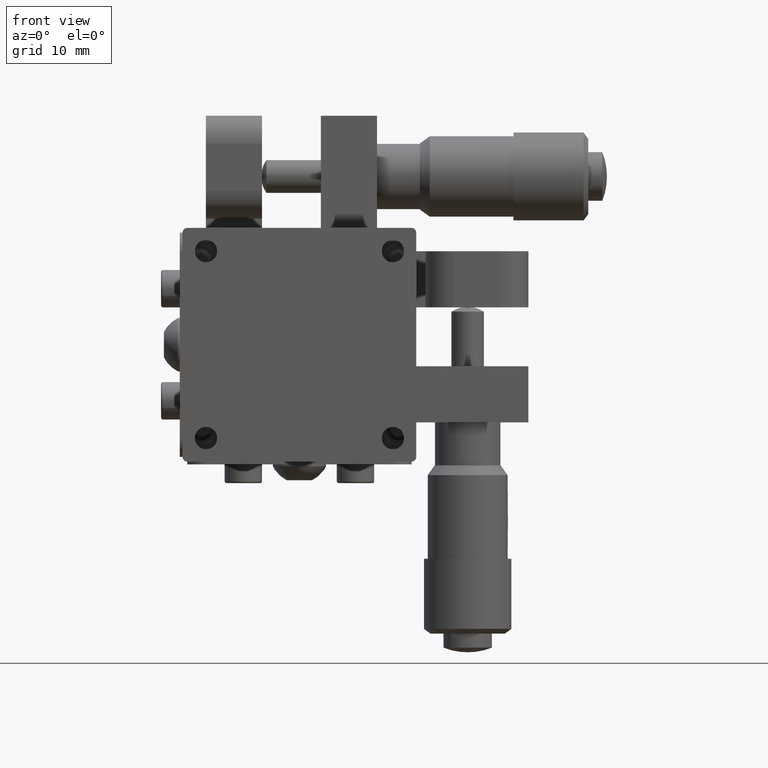
[diagram: clean part render]
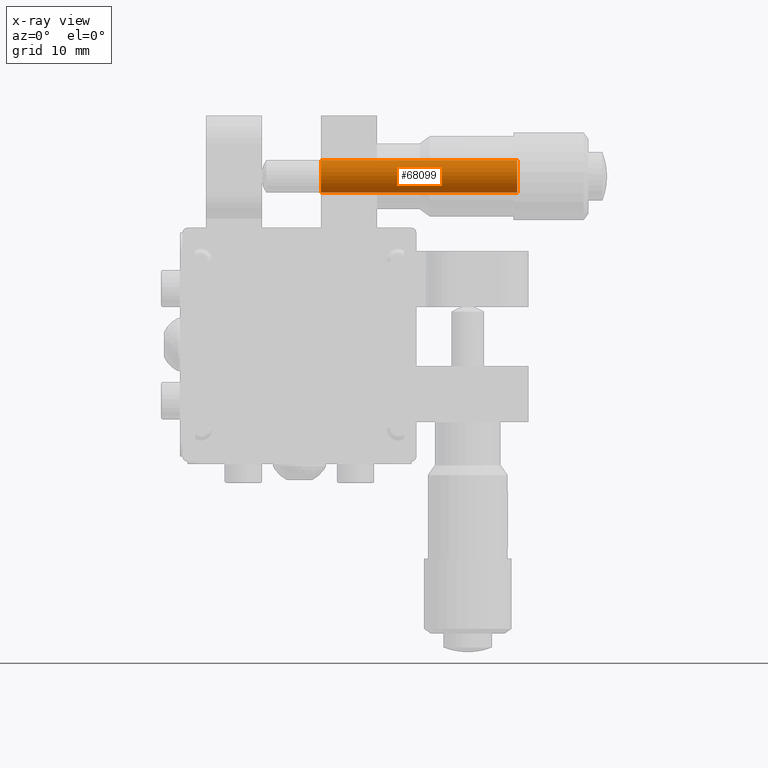
[diagram: x-ray — body ghosted, one internal face saturated and labeled with its STEP entity id]
A machine part, front view, then the same camera in x-ray: the body is ghosted and one INTERNAL B-rep face — a face not visible from any outside direction — is saturated and labeled: STEP entity #68099.
In plain terms, the highlighted cylindrical surface (edge-blend (fillet) strip) has radius 1.75 mm, axis along (-1, -0, -0).
Its self-contained STEP definition (entity closure, byte-faithful):
#11061 = EDGE_LOOP ( 'NONE', ( #35829, #47142, #91333, #44578 ) ) ;
#21367 = FACE_OUTER_BOUND ( 'NONE', #11061, .T. ) ;
#23414 = CARTESIAN_POINT ( 'NONE',  ( 23.30000000000003600, 7.333525501850187000, 16.25510145270401800 ) ) ;
#26351 = VECTOR ( 'NONE', #65777, 1000.000000000000000 ) ;
#33057 = DIRECTION ( 'NONE',  ( -1.000000000000000000, -1.224646799147349500E-016, -1.198260150553011900E-016 ) ) ;
#33107 = EDGE_CURVE ( 'NONE', #71112, #44688, #57722, .T. ) ;
#33288 = DIRECTION ( 'NONE',  ( -1.000000000000000000, -1.224646799147349800E-016, -1.198260150553010200E-016 ) ) ;
#35535 = DIRECTION ( 'NONE',  ( 0.0000000000000000000, -0.07630028677153800900, 0.9970848841691368800 ) ) ;
#35829 = ORIENTED_EDGE ( 'NONE', *, *, #33107, .F. ) ;
#37009 = CARTESIAN_POINT ( 'NONE',  ( 23.30000000000003600, 7.066474498149805300, 19.74489854729599300 ) ) ;
#37345 = DIRECTION ( 'NONE',  ( -1.000000000000000000, -1.224646799147349800E-016, -1.198260150553010200E-016 ) ) ;
#37710 = CIRCLE ( 'NONE', #64774, 1.749999999999998400 ) ;
#37936 = VERTEX_POINT ( 'NONE', #74942 ) ;
#40772 = DIRECTION ( 'NONE',  ( 0.0000000000000000000, -0.07630028677153800900, 0.9970848841691368800 ) ) ;
#44578 = ORIENTED_EDGE ( 'NONE', *, *, #82763, .F. ) ;
#44688 = VERTEX_POINT ( 'NONE', #59307 ) ;
#44974 = LINE ( 'NONE', #95400, #26351 ) ;
#47142 = ORIENTED_EDGE ( 'NONE', *, *, #58514, .T. ) ;
#48300 = DIRECTION ( 'NONE',  ( 0.0000000000000000000, -0.07630028677153800900, 0.9970848841691368800 ) ) ;
#53605 = AXIS2_PLACEMENT_3D ( 'NONE', #87446, #94918, #35535 ) ;
#57722 = CIRCLE ( 'NONE', #53605, 1.749999999999998400 ) ;
#58514 = EDGE_CURVE ( 'NONE', #71112, #37936, #44974, .T. ) ;
#58818 = VECTOR ( 'NONE', #37345, 1000.000000000000000 ) ;
#59307 = CARTESIAN_POINT ( 'NONE',  ( 23.30000000000003600, 7.066474498149805300, 19.74489854729599300 ) ) ;
#63529 = VERTEX_POINT ( 'NONE', #65373 ) ;
#64278 = CYLINDRICAL_SURFACE ( 'NONE', #88542, 1.749999999999998400 ) ;
#64774 = AXIS2_PLACEMENT_3D ( 'NONE', #77493, #33057, #48300 ) ;
#65373 = CARTESIAN_POINT ( 'NONE',  ( 2.300000000000058900, 7.066474498149802700, 19.74489854729598900 ) ) ;
#65777 = DIRECTION ( 'NONE',  ( -1.000000000000000000, -1.224646799147349800E-016, -1.198260150553010200E-016 ) ) ;
#68099 = ADVANCED_FACE ( 'NONE', ( #21367 ), #64278, .F. ) ;
#71112 = VERTEX_POINT ( 'NONE', #23414 ) ;
#74942 = CARTESIAN_POINT ( 'NONE',  ( 2.300000000000058900, 7.333525501850187000, 16.25510145270401500 ) ) ;
#76261 = LINE ( 'NONE', #37009, #58818 ) ;
#77493 = CARTESIAN_POINT ( 'NONE',  ( 2.300000000000058900, 7.199999999999994000, 18.00000000000000400 ) ) ;
#82763 = EDGE_CURVE ( 'NONE', #44688, #63529, #76261, .T. ) ;
#84263 = CARTESIAN_POINT ( 'NONE',  ( 23.30000000000003600, 7.199999999999996600, 18.00000000000000700 ) ) ;
#87446 = CARTESIAN_POINT ( 'NONE',  ( 23.30000000000003600, 7.199999999999996600, 18.00000000000000700 ) ) ;
#88542 = AXIS2_PLACEMENT_3D ( 'NONE', #84263, #33288, #40772 ) ;
#89583 = EDGE_CURVE ( 'NONE', #37936, #63529, #37710, .T. ) ;
#91333 = ORIENTED_EDGE ( 'NONE', *, *, #89583, .T. ) ;
#94918 = DIRECTION ( 'NONE',  ( -1.000000000000000000, -1.224646799147349500E-016, -1.198260150553011900E-016 ) ) ;
#95400 = CARTESIAN_POINT ( 'NONE',  ( 23.30000000000003600, 7.333525501850187900, 16.25510145270401800 ) ) ;